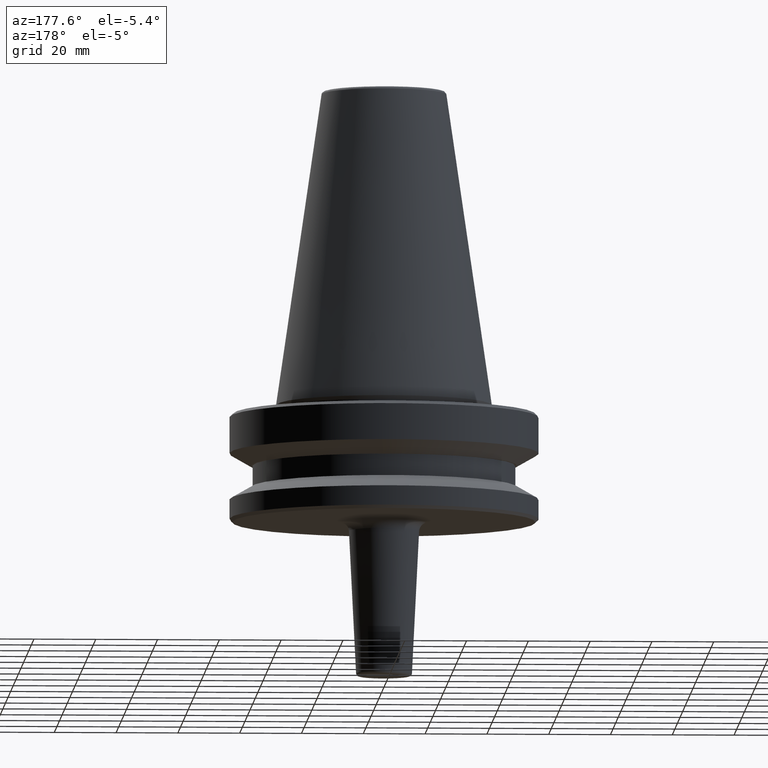
[diagram: clean part render]
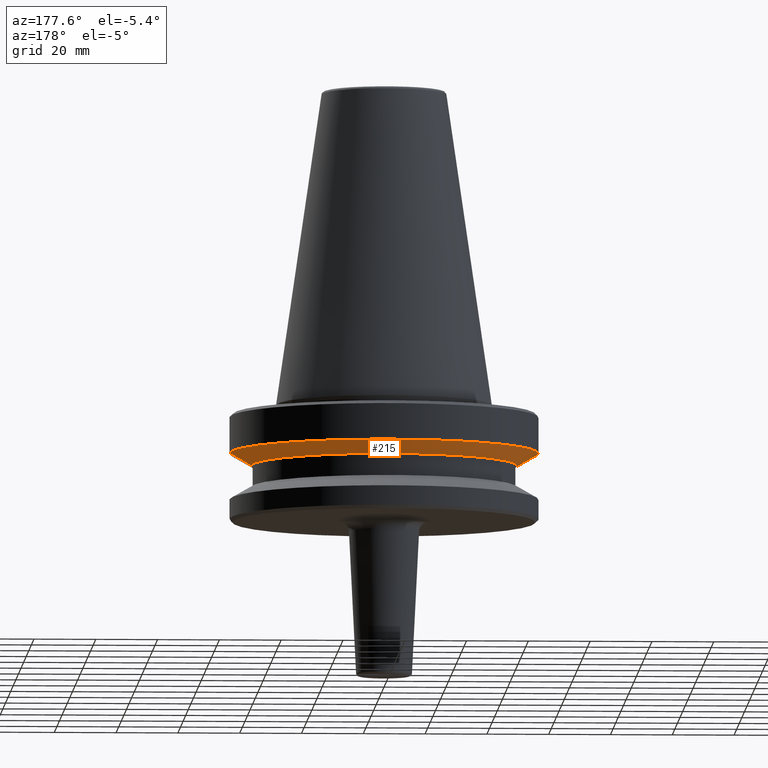
[diagram: same view with one face highlighted and labeled with its STEP entity id]
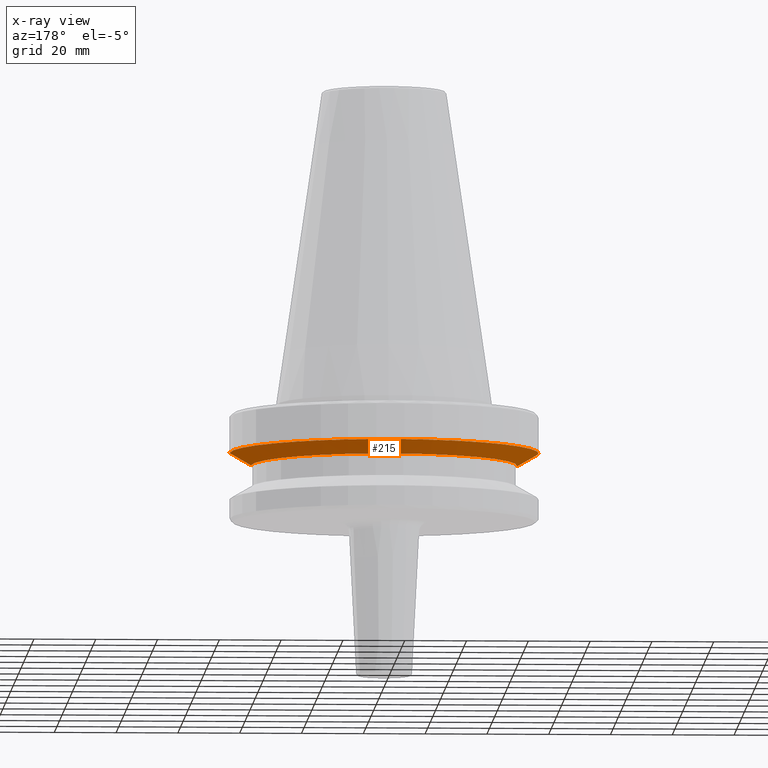
[diagram: x-ray of the same camera — body ghosted, the highlighted face saturated]
A machine part, auxiliary view. The second image highlights one B-rep face of the part: STEP entity #215.
The next image is the same camera in x-ray: the body ghosted, the highlighted face saturated — about 0% of this face is hidden behind the body in this view.
In plain terms, the highlighted conical surface has half-angle 60 deg.
Its self-contained STEP definition (entity closure, byte-faithful):
#19 = CARTESIAN_POINT ( 'NONE',  ( 0.0000000000000000000, 0.0000000000000000000, -15.70022000322675400 ) ) ;
#59 = DIRECTION ( 'NONE',  ( -0.0000000000000000000, -0.0000000000000000000, 1.000000000000000000 ) ) ;
#83 = VERTEX_POINT ( 'NONE', #127 ) ;
#87 = VECTOR ( 'NONE', #185, 1000.000000000000000 ) ;
#104 = CIRCLE ( 'NONE', #483, 43.07217782649103600 ) ;
#127 = CARTESIAN_POINT ( 'NONE',  ( 43.07217782649103600, 0.0000000000000000000, -19.70000000000001000 ) ) ;
#144 = LINE ( 'NONE', #457, #87 ) ;
#185 = DIRECTION ( 'NONE',  ( 0.8660254037844388200, 0.0000000000000000000, 0.4999999999999997200 ) ) ;
#200 = CARTESIAN_POINT ( 'NONE',  ( 0.0000000000000000000, 0.0000000000000000000, -19.70000000000001000 ) ) ;
#215 = ADVANCED_FACE ( 'NONE', ( #757 ), #552, .T. ) ;
#222 = CARTESIAN_POINT ( 'NONE',  ( 0.0000000000000000000, 0.0000000000000000000, -19.70000000000001000 ) ) ;
#254 = EDGE_CURVE ( 'NONE', #266, #568, #293, .T. ) ;
#266 = VERTEX_POINT ( 'NONE', #355 ) ;
#283 = DIRECTION ( 'NONE',  ( 1.000000000000000000, 0.0000000000000000000, 0.0000000000000000000 ) ) ;
#293 = LINE ( 'NONE', #971, #372 ) ;
#355 = CARTESIAN_POINT ( 'NONE',  ( -43.07217782649103600, 5.699027233244276000E-015, -19.70000000000001000 ) ) ;
#372 = VECTOR ( 'NONE', #584, 1000.000000000000000 ) ;
#379 = ORIENTED_EDGE ( 'NONE', *, *, #958, .F. ) ;
#419 = ORIENTED_EDGE ( 'NONE', *, *, #770, .F. ) ;
#421 = ORIENTED_EDGE ( 'NONE', *, *, #900, .T. ) ;
#457 = CARTESIAN_POINT ( 'NONE',  ( 43.07217782649103600, 0.0000000000000000000, -19.70000000000001000 ) ) ;
#483 = AXIS2_PLACEMENT_3D ( 'NONE', #200, #59, #970 ) ;
#489 = AXIS2_PLACEMENT_3D ( 'NONE', #19, #553, #789 ) ;
#494 = VERTEX_POINT ( 'NONE', #685 ) ;
#533 = ORIENTED_EDGE ( 'NONE', *, *, #254, .T. ) ;
#545 = AXIS2_PLACEMENT_3D ( 'NONE', #222, #896, #283 ) ;
#552 = CONICAL_SURFACE ( 'NONE', #545, 43.07217782649103600, 1.047197551196598100 ) ;
#553 = DIRECTION ( 'NONE',  ( -0.0000000000000000000, -0.0000000000000000000, 1.000000000000000000 ) ) ;
#568 = VERTEX_POINT ( 'NONE', #952 ) ;
#584 = DIRECTION ( 'NONE',  ( -0.8660254037844388200, 1.060575238724907200E-016, 0.4999999999999997200 ) ) ;
#651 = CIRCLE ( 'NONE', #489, 50.00000000000000000 ) ;
#685 = CARTESIAN_POINT ( 'NONE',  ( 50.00000000000000000, 0.0000000000000000000, -15.70022000322675400 ) ) ;
#757 = FACE_OUTER_BOUND ( 'NONE', #982, .T. ) ;
#770 = EDGE_CURVE ( 'NONE', #83, #494, #144, .T. ) ;
#789 = DIRECTION ( 'NONE',  ( 1.000000000000000000, 0.0000000000000000000, 0.0000000000000000000 ) ) ;
#896 = DIRECTION ( 'NONE',  ( -0.0000000000000000000, -0.0000000000000000000, 1.000000000000000000 ) ) ;
#900 = EDGE_CURVE ( 'NONE', #83, #266, #104, .T. ) ;
#952 = CARTESIAN_POINT ( 'NONE',  ( -50.00000000000000000, 6.123233995736766900E-015, -15.70022000322675400 ) ) ;
#958 = EDGE_CURVE ( 'NONE', #494, #568, #651, .T. ) ;
#970 = DIRECTION ( 'NONE',  ( 1.000000000000000000, 0.0000000000000000000, 0.0000000000000000000 ) ) ;
#971 = CARTESIAN_POINT ( 'NONE',  ( -43.07217782649103600, 5.274820470751785100E-015, -19.70000000000001000 ) ) ;
#982 = EDGE_LOOP ( 'NONE', ( #421, #533, #379, #419 ) ) ;